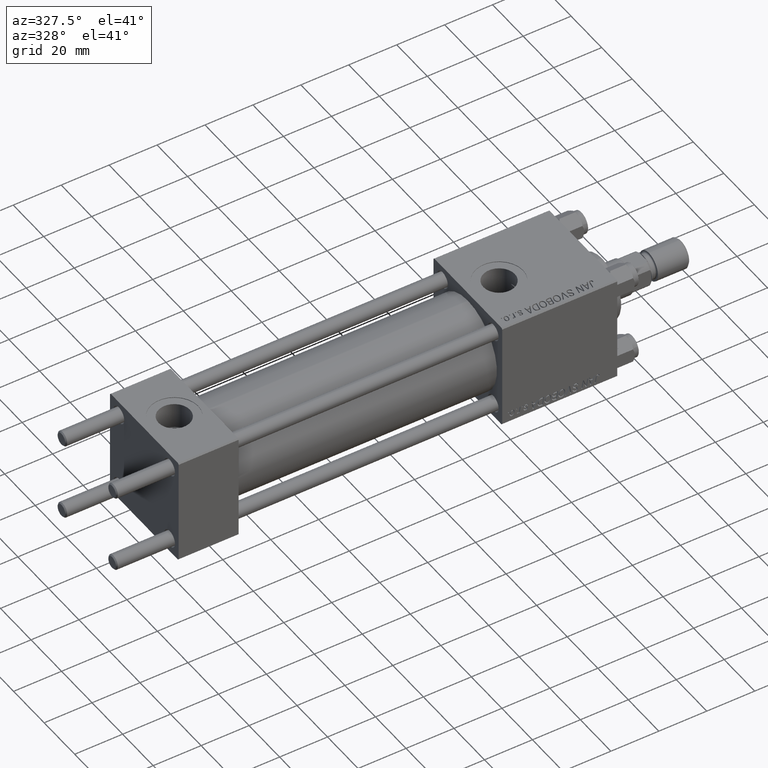
[diagram: clean part render]
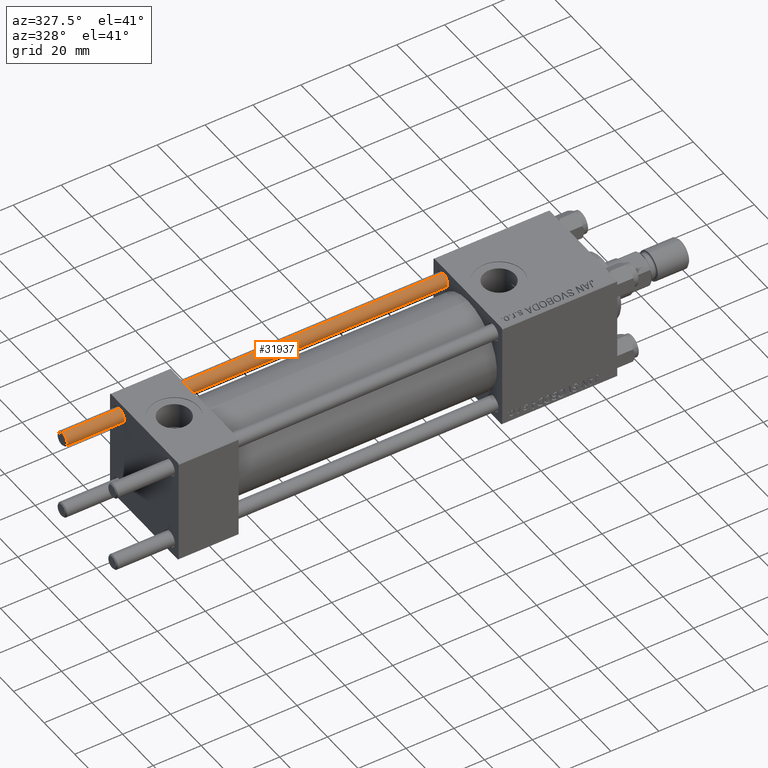
[diagram: same view with one face highlighted and labeled with its STEP entity id]
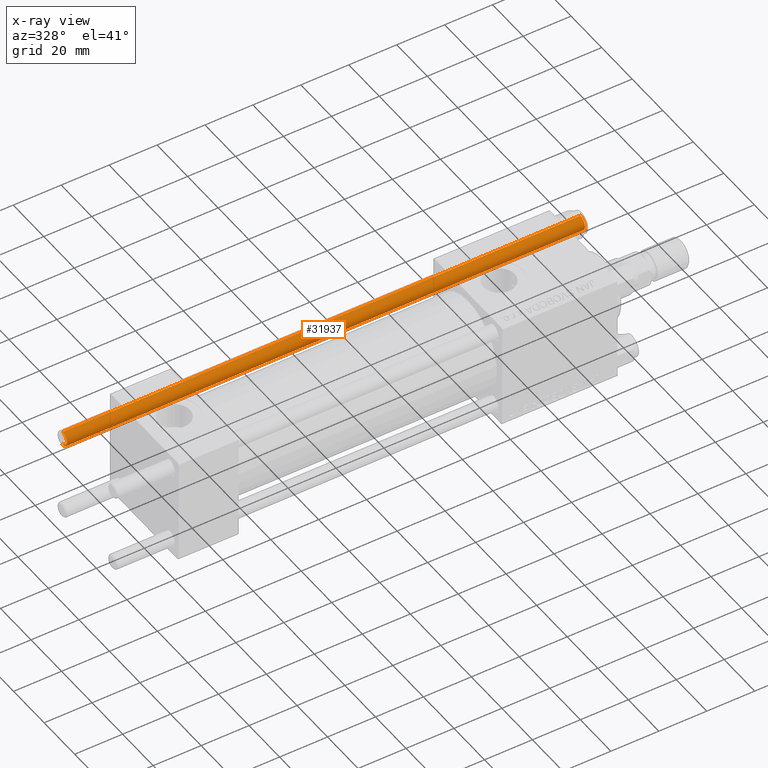
[diagram: x-ray of the same camera — body ghosted, the highlighted face saturated]
A machine part, auxiliary view. The second image highlights one B-rep face of the part: STEP entity #31937.
The next image is the same camera in x-ray: the body ghosted, the highlighted face saturated — about 0% of this face is hidden behind the body in this view.
In plain terms, the highlighted cylindrical surface (edge-blend (fillet) strip) has radius 3 mm, axis along (-1, -0, -0).
Its self-contained STEP definition (entity closure, byte-faithful):
#2797 = CARTESIAN_POINT ( 'NONE',  ( -3.000000000000000444, 0.000000000000000000, 0.5000000000000559552 ) ) ;
#3223 = CARTESIAN_POINT ( 'NONE',  ( 3.000000000000000444, 3.673940397442060361E-16, 217.0000000000000000 ) ) ;
#3649 = VERTEX_POINT ( 'NONE', #41596 ) ;
#7394 = CARTESIAN_POINT ( 'NONE',  ( 0.000000000000000000, 0.000000000000000000, 0.5000000000000559552 ) ) ;
#7903 = AXIS2_PLACEMENT_3D ( 'NONE', #7394, #38978, #47647 ) ;
#10737 = VERTEX_POINT ( 'NONE', #2797 ) ;
#11523 = CARTESIAN_POINT ( 'NONE',  ( 3.000000000000000444, 3.673940397442060361E-16, 216.5000000000000000 ) ) ;
#11708 = AXIS2_PLACEMENT_3D ( 'NONE', #15985, #20940, #20682 ) ;
#15985 = CARTESIAN_POINT ( 'NONE',  ( 0.000000000000000000, 0.000000000000000000, 217.0000000000000000 ) ) ;
#16349 = ORIENTED_EDGE ( 'NONE', *, *, #36873, .F. ) ;
#17231 = CARTESIAN_POINT ( 'NONE',  ( 3.000000000000000444, 3.673940397442060361E-16, 0.5000000000000559552 ) ) ;
#18877 = AXIS2_PLACEMENT_3D ( 'NONE', #34080, #39054, #50910 ) ;
#19293 = DIRECTION ( 'NONE',  ( -0.000000000000000000, -0.000000000000000000, -1.000000000000000000 ) ) ;
#19656 = CIRCLE ( 'NONE', #7903, 3.000000000000000444 ) ;
#20069 = ORIENTED_EDGE ( 'NONE', *, *, #47096, .T. ) ;
#20682 = DIRECTION ( 'NONE',  ( -1.000000000000000000, 0.000000000000000000, 0.000000000000000000 ) ) ;
#20917 = VECTOR ( 'NONE', #41883, 1000.000000000000000 ) ;
#20940 = DIRECTION ( 'NONE',  ( -0.000000000000000000, -0.000000000000000000, -1.000000000000000000 ) ) ;
#21830 = VECTOR ( 'NONE', #19293, 1000.000000000000000 ) ;
#22719 = VERTEX_POINT ( 'NONE', #11523 ) ;
#24430 = ORIENTED_EDGE ( 'NONE', *, *, #34443, .T. ) ;
#27970 = LINE ( 'NONE', #3223, #21830 ) ;
#29597 = ORIENTED_EDGE ( 'NONE', *, *, #48328, .T. ) ;
#31937 = ADVANCED_FACE ( 'NONE', ( #40941 ), #52027, .T. ) ;
#32972 = EDGE_LOOP ( 'NONE', ( #16349, #29597, #24430, #20069 ) ) ;
#34080 = CARTESIAN_POINT ( 'NONE',  ( 0.000000000000000000, 0.000000000000000000, 216.5000000000000000 ) ) ;
#34443 = EDGE_CURVE ( 'NONE', #3649, #10737, #44280, .T. ) ;
#35644 = CIRCLE ( 'NONE', #18877, 3.000000000000000444 ) ;
#36725 = VERTEX_POINT ( 'NONE', #17231 ) ;
#36873 = EDGE_CURVE ( 'NONE', #22719, #36725, #27970, .T. ) ;
#38978 = DIRECTION ( 'NONE',  ( -0.000000000000000000, -0.000000000000000000, 1.000000000000000000 ) ) ;
#39054 = DIRECTION ( 'NONE',  ( 0.000000000000000000, 0.000000000000000000, -1.000000000000000000 ) ) ;
#40941 = FACE_OUTER_BOUND ( 'NONE', #32972, .T. ) ;
#41596 = CARTESIAN_POINT ( 'NONE',  ( -3.000000000000000444, 0.000000000000000000, 216.5000000000000000 ) ) ;
#41883 = DIRECTION ( 'NONE',  ( -0.000000000000000000, -0.000000000000000000, -1.000000000000000000 ) ) ;
#44280 = LINE ( 'NONE', #50044, #20917 ) ;
#47096 = EDGE_CURVE ( 'NONE', #10737, #36725, #19656, .T. ) ;
#47647 = DIRECTION ( 'NONE',  ( 1.000000000000000000, 0.000000000000000000, 0.000000000000000000 ) ) ;
#48328 = EDGE_CURVE ( 'NONE', #22719, #3649, #35644, .T. ) ;
#50044 = CARTESIAN_POINT ( 'NONE',  ( -3.000000000000000444, 0.000000000000000000, 217.0000000000000000 ) ) ;
#50910 = DIRECTION ( 'NONE',  ( 1.000000000000000000, 0.000000000000000000, 0.000000000000000000 ) ) ;
#52027 = CYLINDRICAL_SURFACE ( 'NONE', #11708, 3.000000000000000444 ) ;